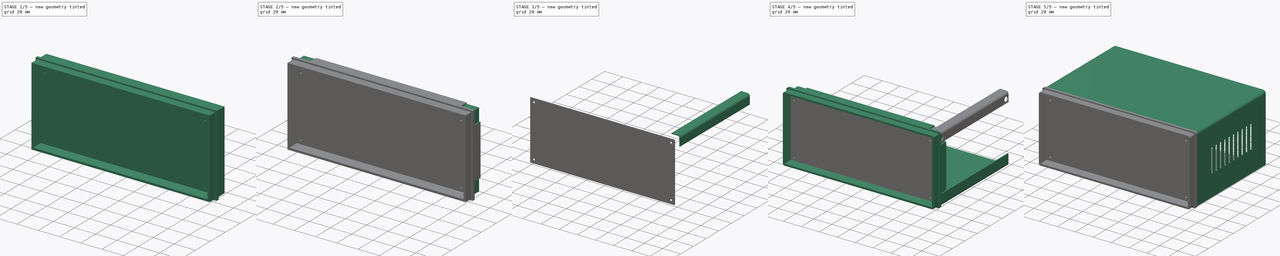
[diagram: build sequence overview — one tinted view per stage of 5, left to right]
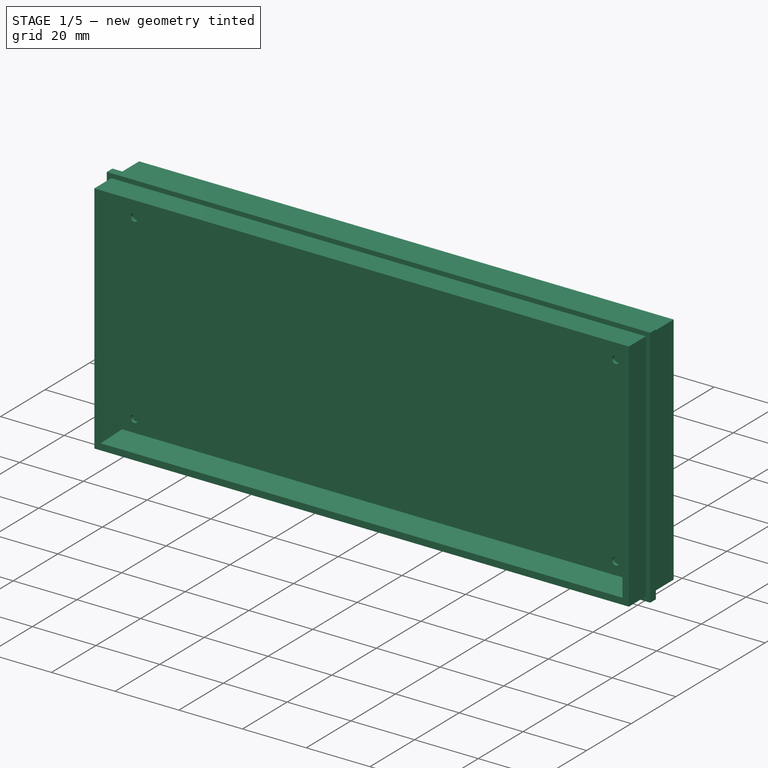
[diagram: stage 1 of 5 — iso view after this stage's code; geometry added in this stage tinted green]
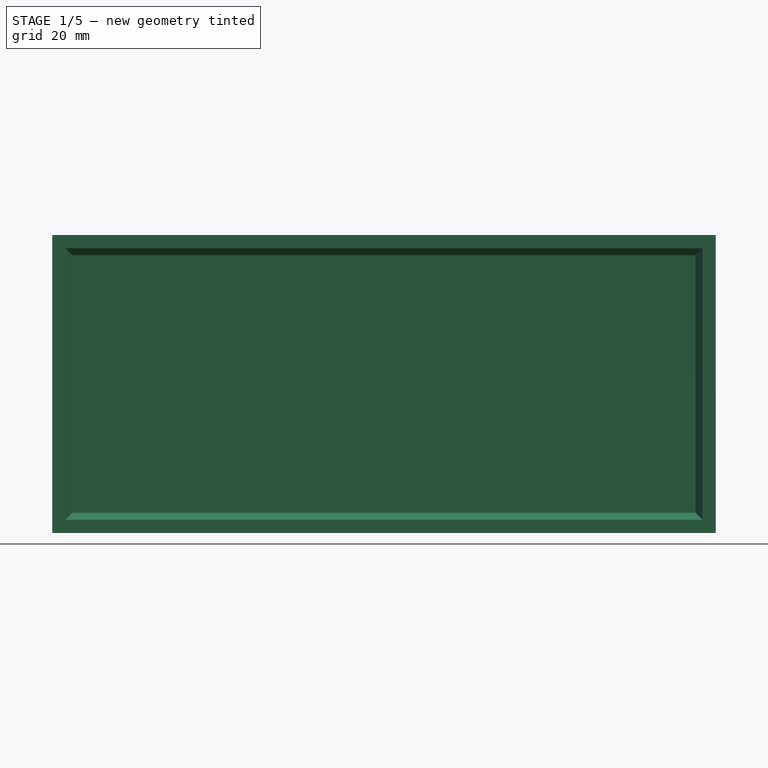
[diagram: stage 1 of 5 — front view after this stage's code; geometry added in this stage tinted green]
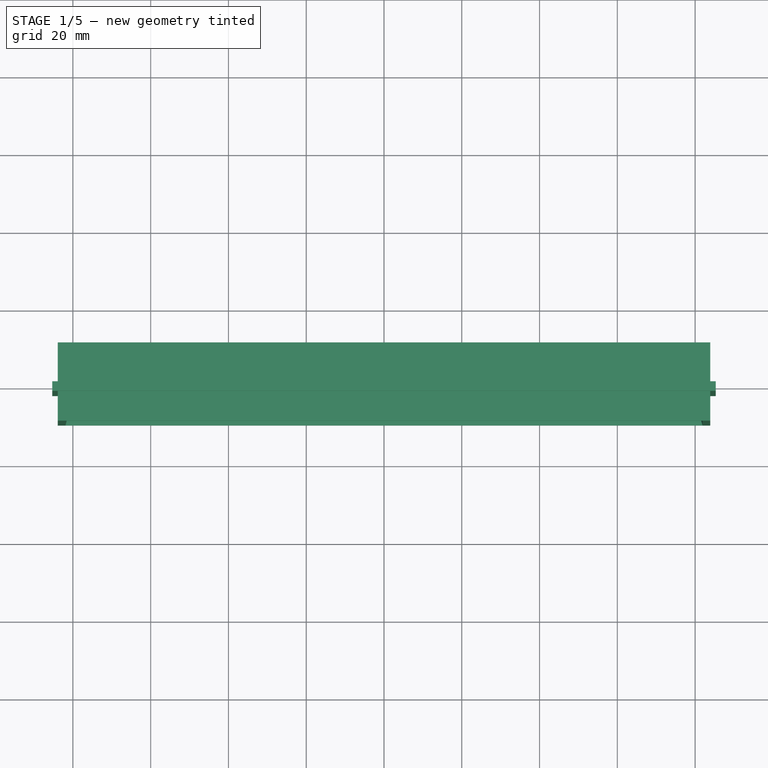
[diagram: stage 1 of 5 — top view after this stage's code; geometry added in this stage tinted green]
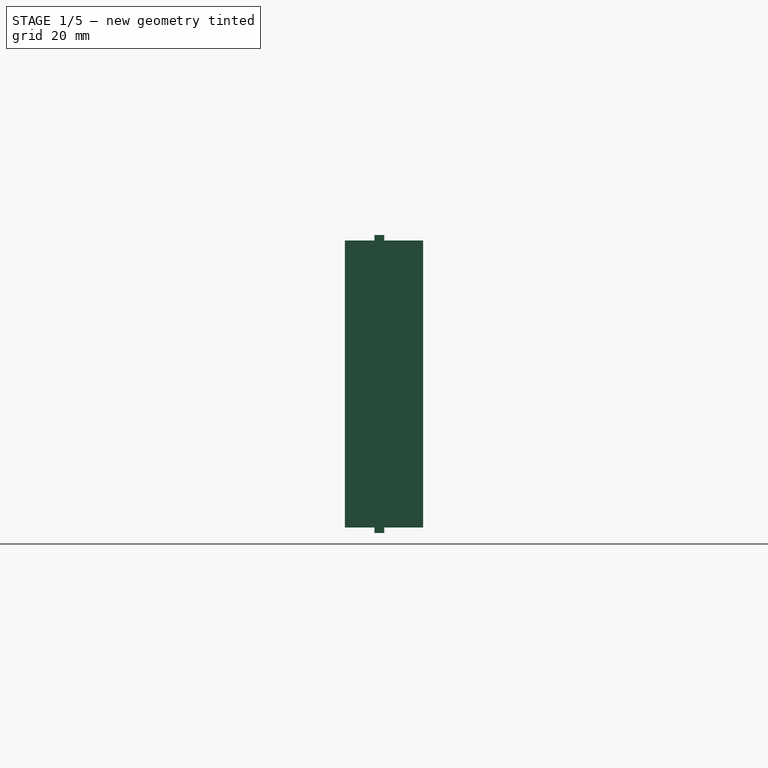
[diagram: stage 1 of 5 — right view after this stage's code; geometry added in this stage tinted green]
FCSTD DOCUMENT  (FreeCAD 0.18R4 (GitTag))
Label: Metal_Box_Aliexpress_170x130x80
License: All rights reserved
LicenseURL: http://en.wikipedia.org/wiki/All_rights_reserved
objects: Sketcher::SketchObject×14, PartDesign::Body×8, PartDesign::Pocket×6, PartDesign::Mirrored×5, PartDesign::Pad×4, PartDesign::ShapeBinder×3, PartDesign::FeatureBase×3, PartDesign::MultiTransform×2, PartDesign::Fillet×2, PartDesign::Hole×2, PartDesign::AdditivePipe×1, PartDesign::LinearPattern×1, App::Part×1
note: 64 computed .brp shape members not serialized (recipe doc carries the construction recipe); baked Part::Feature solids carry a one-line shape summary decoded from their .brp

FEATURE [Sketcher::SketchObject] Sketch  label="Sketch_innerPath"
  MapMode = 5
  Placement = pos=(0,0,0) rot=(1,0,0;1.5708rad)
  Support = -> [XZ_Plane]
  sketch-geometry (4):
    g0: LineSegment StartX=-81 StartY=34 StartZ=0 EndX=81 EndY=34 EndZ=0
    g1: LineSegment StartX=81 StartY=34 StartZ=0 EndX=81 EndY=-34 EndZ=0
    g2: LineSegment StartX=81 StartY=-34 StartZ=0 EndX=-81 EndY=-34 EndZ=0
    g3: LineSegment StartX=-81 StartY=-34 StartZ=0 EndX=-81 EndY=34 EndZ=0
  constraints (10):
    c: Coincident(g0,g1)
    c: Coincident(g1,g2)
    c: Coincident(g2,g3)
    c: Coincident(g3,g0)
    c: Horizontal(g2)
    c: Vertical(g3)
    c: Symmetric(g0,g0,g-2)
    c: Symmetric(g0,g1,g-1)
    c: DistanceX(g0,g0) = 162
    c: DistanceY(g1,g1) = 68
FEATURE [Sketcher::SketchObject] Sketch001  label="Sketch_Profile"
  ExternalGeometry = -> [Sketch]
  MapMode = 5
  Support = -> [XY_Plane]
  sketch-geometry (12):
    g0: LineSegment StartX=81 StartY=10.6 StartZ=0 EndX=83.9 EndY=10.6 EndZ=0
    g1: LineSegment StartX=83.9 StartY=10.6 StartZ=0 EndX=83.9 EndY=0.6 EndZ=0
    g2: LineSegment StartX=83.9 StartY=0.6 StartZ=0 EndX=85.3 EndY=0.6 EndZ=0
    g3: LineSegment StartX=85.3 StartY=0.6 StartZ=0 EndX=85.3 EndY=-1.9 EndZ=0
    g4: LineSegment StartX=85.3 StartY=-1.9 StartZ=0 EndX=83.9 EndY=-1.9 EndZ=0
    g5: LineSegment StartX=83.9 StartY=-1.9 StartZ=0 EndX=83.9 EndY=-9.5 EndZ=0
    g6: LineSegment StartX=83.9 StartY=-9.5 StartZ=0 EndX=81.9 EndY=-9.5 EndZ=0
    g7: LineSegment StartX=81.9 StartY=-9.5 StartZ=0 EndX=80.1 EndY=-2.5 EndZ=0
    g8: LineSegment StartX=80.1 StartY=-2.5 StartZ=0 EndX=74.3 EndY=-2.5 EndZ=0
    g9: LineSegment StartX=74.3 StartY=-2.5 StartZ=0 EndX=74.3 EndY=0 EndZ=0
    g10: LineSegment StartX=74.3 StartY=0 StartZ=0 EndX=81 EndY=0 EndZ=0
    g11: LineSegment StartX=81 StartY=0 StartZ=0 EndX=81 EndY=10.6 EndZ=0
  constraints (35):
    c: Coincident(g0,g1)
    c: Vertical(g1)
    c: Coincident(g1,g2)
    c: Horizontal(g2)
    c: Coincident(g2,g3)
    c: Vertical(g3)
    c: Coincident(g3,g4)
    c: Coincident(g4,g5)
    c: Horizontal(g0)
    c: Horizontal(g4)
    c: Vertical(g5)
    c: Coincident(g5,g6)
    c: Horizontal(g6)
    c: Coincident(g6,g7)
    c: Coincident(g7,g8)
    c: Horizontal(g8)
    c: Coincident(g8,g9)
    c: Vertical(g9)
    c: Coincident(g9,g10)
    c: Horizontal(g10)
    c: Coincident(g10,g11)
    c: Coincident(g11,g0)
    c: Vertical(g11)
    c: DistanceY(g5,g0) = 20.1
    c: DistanceY(g3,g2) = 2.5
    c: DistanceY(g1,g1) = 10
    c: DistanceX(g0,g0) = 2.9
    c: DistanceX(g6,g6) = 2
    c: Vertical(g1,g4)
    c: DistanceY(g9,g9) = 2.5
    c: DistanceY(g11,g11) = 10.6
    c: DistanceX(g4,g4) = 1.4
    c: DistanceX(g8,g8) = 5.8
    c: DistanceX(g8,g3) = 11
    c: Coincident(g10,g-3)
FEATURE [PartDesign::AdditivePipe] AdditivePipe  label="AdditivePipe_Frame"
  AuxilleryCurvelinear = true
  AuxillerySpineTangent = false
  Binormal = (0,0,0)
  Mode = 2
  Profile = -> Sketch001
  Spine = -> Sketch
  SpineTangent = false
  Transformation = 0
  Transition = 1
FEATURE [PartDesign::Body] Body006  label="Body_BarLeft"
  BaseFeature = -> Body005
  Group = -> [Clone001]
  Origin = -> Origin006
  Placement = pos=(0,111.2,0) rot=(0,0,1;3.14159rad)
  Tip = -> Clone001
FEATURE [Sketcher::SketchObject] Sketch012  label="Sketch_PanelFront"
  MapMode = 5
  Placement = pos=(0,0,0) rot=(1,0,0;1.5708rad)
  Support = -> [XZ_Plane007]
  sketch-geometry (4):
    g0: LineSegment StartX=-79.5 StartY=32.5 StartZ=0 EndX=79.5 EndY=32.5 EndZ=0
    g1: LineSegment StartX=79.5 StartY=32.5 StartZ=0 EndX=79.5 EndY=-32.5 EndZ=0
    g2: LineSegment StartX=79.5 StartY=-32.5 StartZ=0 EndX=-79.5 EndY=-32.5 EndZ=0
    g3: LineSegment StartX=-79.5 StartY=-32.5 StartZ=0 EndX=-79.5 EndY=32.5 EndZ=0
  constraints (10):
    c: Coincident(g0,g1)
    c: Coincident(g1,g2)
    c: Coincident(g2,g3)
    c: Coincident(g3,g0)
    c: Horizontal(g2)
    c: Vertical(g3)
    c: Symmetric(g0,g0,g-2)
    c: Symmetric(g0,g1,g-1)
    c: DistanceX(g0,g0) = 159
    c: DistanceY(g1,g1) = 65
FEATURE [PartDesign::Pad] Pad003  label="Pad_PanelFront"
  Length = 1
  Length2 = 100
  Placement = pos=(0,0,0) rot=(1,0,0;1.5708rad)
  Profile = -> Sketch012
  Type = 0
FEATURE [Sketcher::SketchObject] Sketch013  label="Sketch_PanelHoles"
  MapMode = 5
  Placement = pos=(0,-1,4e-16) rot=(1,0,0;1.5708rad)
  Support = -> [Pad003]
  sketch-geometry (4):
    g0: Circle CenterX=75.55 CenterY=28.575 CenterZ=0 NormalX=0 NormalY=0 NormalZ=1 AngleXU=0 Radius=1.15
    g1: Circle CenterX=-75.55 CenterY=28.575 CenterZ=0 NormalX=0 NormalY=0 NormalZ=1 AngleXU=0 Radius=1.15
    g2: Circle CenterX=-75.55 CenterY=-28.575 CenterZ=0 NormalX=0 NormalY=0 NormalZ=1 AngleXU=0 Radius=1.15
    g3: Circle CenterX=75.55 CenterY=-28.575 CenterZ=0 NormalX=0 NormalY=0 NormalZ=1 AngleXU=0 Radius=1.15
  constraints (10):
    c: Symmetric(g0,g1,g-2)
    c: Vertical(g1,g2)
    c: Equal(g1,g0)
    c: Equal(g0,g2)
    c: Equal(g2,g3)
    c: Diameter(g1) = 2.3
    c: DistanceY(g3,g0) = 57.15
    c: Horizontal(g2,g3)
    c: Symmetric(g0,g3,g-1)
    c: DistanceX(g1,g0) = 151.1
FEATURE [PartDesign::Pocket] Pocket005  label="Pocket_PanelHoles"
  BaseFeature = -> Pad003
  Length = 5
  Length2 = 100
  Midplane = true
  Placement = pos=(0,0,0) rot=(1,0,0;1.5708rad)
  Profile = -> Sketch013
  Type = 1
FEATURE [PartDesign::Body] Body007  label="Body_PanelFront"
  Group = -> [Sketch012,Pad003,Sketch013,Pocket005]
  Origin = -> Origin007
  Placement = pos=(0,-2.5,0) rot=(0,0,1;0rad)
  Tip = -> Pocket005
FEATURE [PartDesign::FeatureBase] Clone002
  BaseFeature = -> Body007
  Placement = pos=(0,-2.5,0) rot=(0,0,1;0rad)
FEATURE [PartDesign::Body] Body008  label="Body_PanelRear"
  BaseFeature = -> Body007
  Group = -> [Clone002]
  Origin = -> Origin008
  Placement = pos=(0,117.2,0) rot=(0,0,1;0rad)
  Tip = -> Clone002
FEATURE [App::Part] Part  label="Metal_Box_Aliexpress_170x130x80"
  Group = -> [Body,Body001,Body002,Body003,Body005,Body006,Body007,Body008]
  Origin = -> Origin009
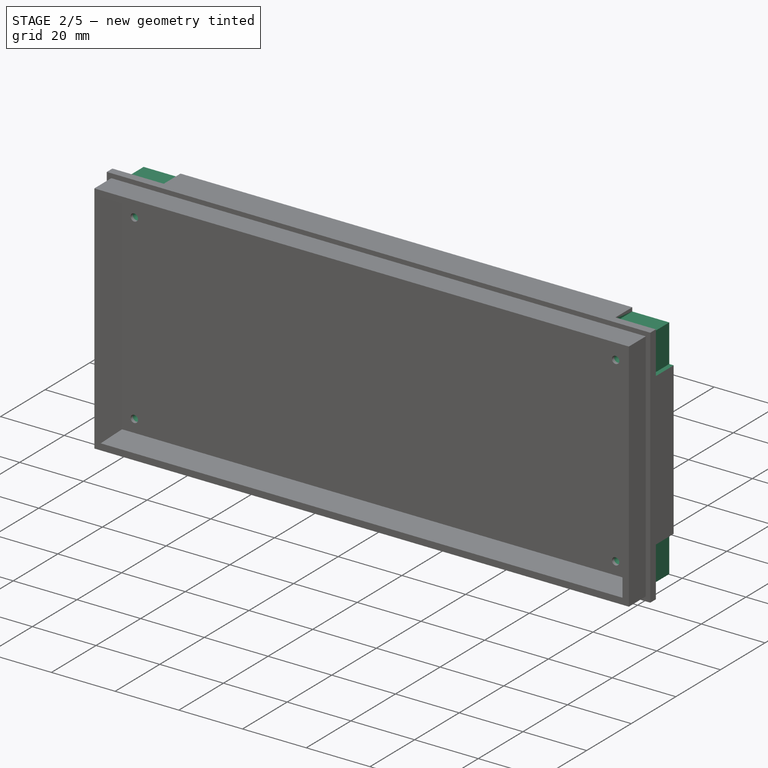
[diagram: stage 2 of 5 — iso view after this stage's code; geometry added in this stage tinted green]
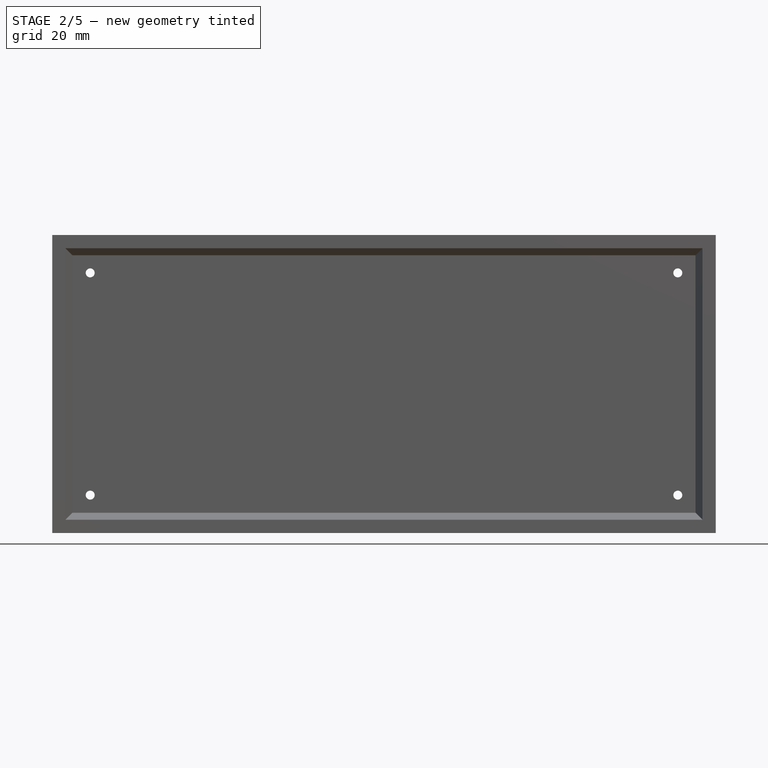
[diagram: stage 2 of 5 — front view after this stage's code; geometry added in this stage tinted green]
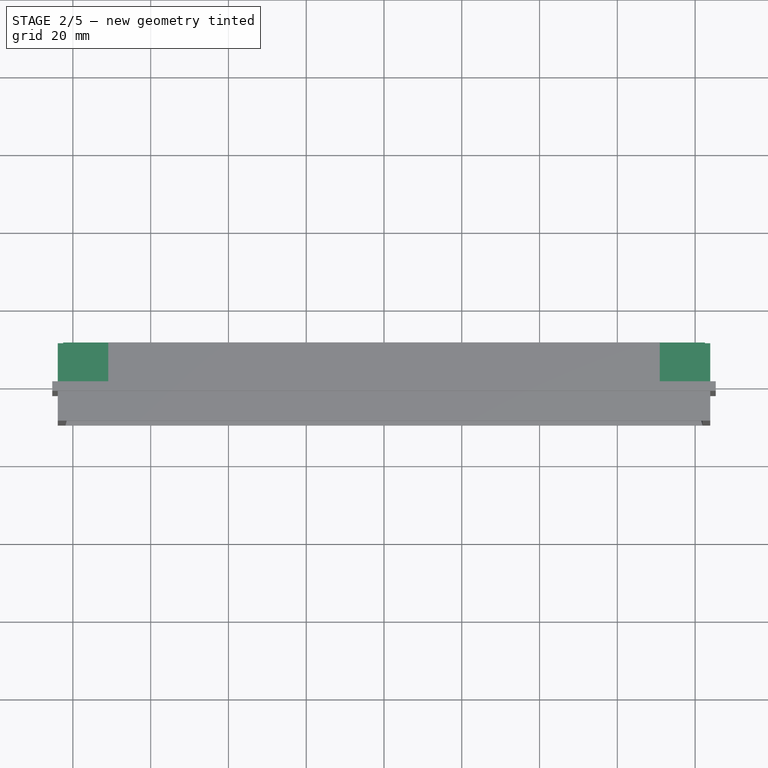
[diagram: stage 2 of 5 — top view after this stage's code; geometry added in this stage tinted green]
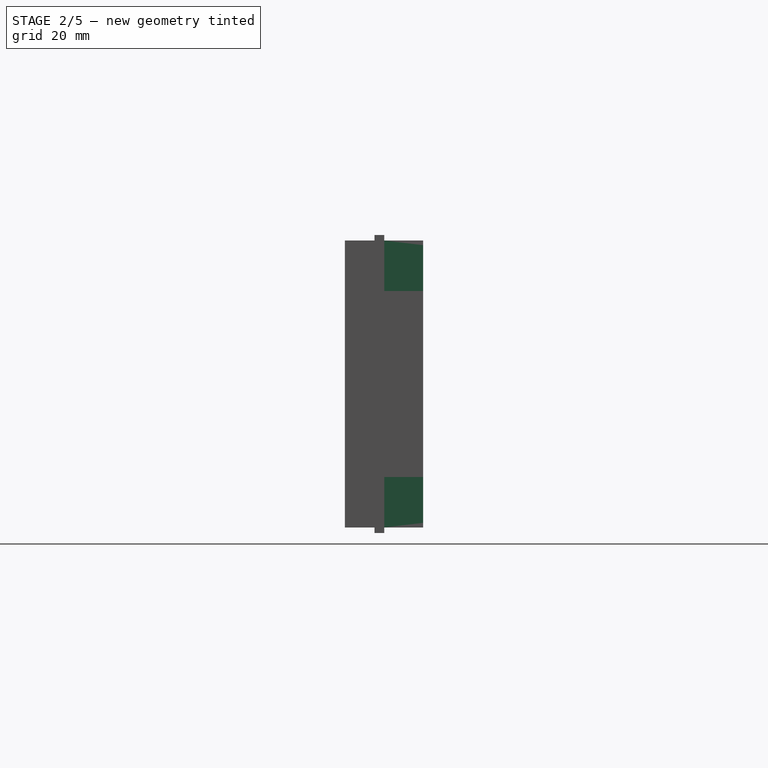
[diagram: stage 2 of 5 — right view after this stage's code; geometry added in this stage tinted green]
FEATURE [Sketcher::SketchObject] Sketch002  label="Sketch_PocketTopBot"
  ExternalGeometry = -> [AdditivePipe]
  MapMode = 5
  Placement = pos=(0,1.22e-14,36.9) rot=(0,0,1;0rad)
  Support = -> [AdditivePipe]
  sketch-geometry (4):
    g0: LineSegment StartX=-83.9 StartY=10.6 StartZ=0 EndX=-70.9 EndY=10.6 EndZ=0
    g1: LineSegment StartX=-70.9 StartY=10.6 StartZ=0 EndX=-70.9 EndY=0.6 EndZ=0
    g2: LineSegment StartX=-70.9 StartY=0.6 StartZ=0 EndX=-83.9 EndY=0.6 EndZ=0
    g3: LineSegment StartX=-83.9 StartY=0.6 StartZ=0 EndX=-83.9 EndY=10.6 EndZ=0
  constraints (11):
    c: Coincident(g0,g1)
    c: Coincident(g1,g2)
    c: Coincident(g2,g3)
    c: Coincident(g3,g0)
    c: Horizontal(g0)
    c: Horizontal(g2)
    c: Vertical(g1)
    c: Vertical(g3)
    c: DistanceX(g0,g0) = 13
    c: PointOnObject(g2,g-5)
    c: Coincident(g0,g-3)
FEATURE [PartDesign::Pocket] Pocket  label="Pocket_TopBot"
  BaseFeature = -> AdditivePipe
  Length = 1.2
  Length2 = 100
  Profile = -> Sketch002
  Type = 0
FEATURE [PartDesign::Mirrored] Mirrored
  MirrorPlane = -> Sketch002 [V_Axis]
FEATURE [PartDesign::Mirrored] Mirrored001
  MirrorPlane = -> XY_Plane
FEATURE [PartDesign::MultiTransform] MultiTransform  label="MultiTransform_PocketsTopBot"
  BaseFeature = -> Pocket
  Originals = -> [Pocket]
  Transformations = -> [Mirrored,Mirrored001]
FEATURE [Sketcher::SketchObject] Sketch003  label="Sketch_PocketLeftRi"
  ExternalGeometry = -> [MultiTransform]
  MapMode = 5
  Placement = pos=(-83.9,5.62e-14,0) rot=(-0.57735,0.57735,0.57735;4.18879rad)
  Support = -> [MultiTransform]
  sketch-geometry (4):
    g0: LineSegment StartX=-10.6 StartY=36.9 StartZ=0 EndX=-0.6 EndY=36.9 EndZ=0
    g1: LineSegment StartX=-0.6 StartY=36.9 StartZ=0 EndX=-0.6 EndY=23.9 EndZ=0
    g2: LineSegment StartX=-0.6 StartY=23.9 StartZ=0 EndX=-10.6 EndY=23.9 EndZ=0
    g3: LineSegment StartX=-10.6 StartY=23.9 StartZ=0 EndX=-10.6 EndY=36.9 EndZ=0
  constraints (10):
    c: Coincident(g0,g1)
    c: Coincident(g1,g2)
    c: Coincident(g2,g3)
    c: Coincident(g3,g0)
    c: Horizontal(g2)
    c: Vertical(g1)
    c: Vertical(g3)
    c: Coincident(g0,g-3)
    c: DistanceY(g3,g3) = 13
    c: Coincident(g0,g-3)
FEATURE [PartDesign::Pocket] Pocket001  label="Pocket_LeftRi"
  BaseFeature = -> MultiTransform
  Length = 1.4
  Length2 = 100
  Profile = -> Sketch003
  Type = 0
FEATURE [PartDesign::Mirrored] Mirrored002
  MirrorPlane = -> XY_Plane
FEATURE [PartDesign::Mirrored] Mirrored003
  MirrorPlane = -> YZ_Plane
FEATURE [PartDesign::MultiTransform] MultiTransform001  label="MultiTransform_Pockets_LeftRi"
  BaseFeature = -> Pocket001
  Originals = -> [Pocket001]
  Transformations = -> [Mirrored002,Mirrored003]
FEATURE [Sketcher::SketchObject] Sketch004  label="Sketch_HolesFront"
  ExternalGeometry = -> [MultiTransform001]
  MapMode = 5
  Placement = pos=(0,0,0) rot=(1,0,0;1.5708rad)
  Support = -> [XZ_Plane]
  sketch-geometry (4):
    g0: Circle CenterX=-75.55 CenterY=28.575 CenterZ=0 NormalX=0 NormalY=0 NormalZ=1 AngleXU=0 Radius=1.15
    g1: Circle CenterX=75.55 CenterY=28.575 CenterZ=0 NormalX=0 NormalY=0 NormalZ=1 AngleXU=0 Radius=1.15
    g2: Circle CenterX=75.55 CenterY=-28.575 CenterZ=0 NormalX=0 NormalY=0 NormalZ=1 AngleXU=0 Radius=1.15
    g3: Circle CenterX=-75.55 CenterY=-28.575 CenterZ=0 NormalX=0 NormalY=0 NormalZ=1 AngleXU=0 Radius=1.15
  constraints (10):
    c: Diameter(g0) = 2.3
    c: Equal(g1,g0)
    c: Equal(g0,g2)
    c: Equal(g2,g3)
    c: Horizontal(g3,g2)
    c: Vertical(g1,g2)
    c: Symmetric(g0,g1,g-2)
    c: Symmetric(g0,g3,g-1)
    c: DistanceX(g0,g1) = 151.1
    c: DistanceY(g2,g1) = 57.15
FEATURE [PartDesign::Pocket] Pocket002  label="Pocket_HolesFront"
  BaseFeature = -> MultiTransform001
  Length = 5
  Length2 = 100
  Midplane = true
  Profile = -> Sketch004
  Type = 1
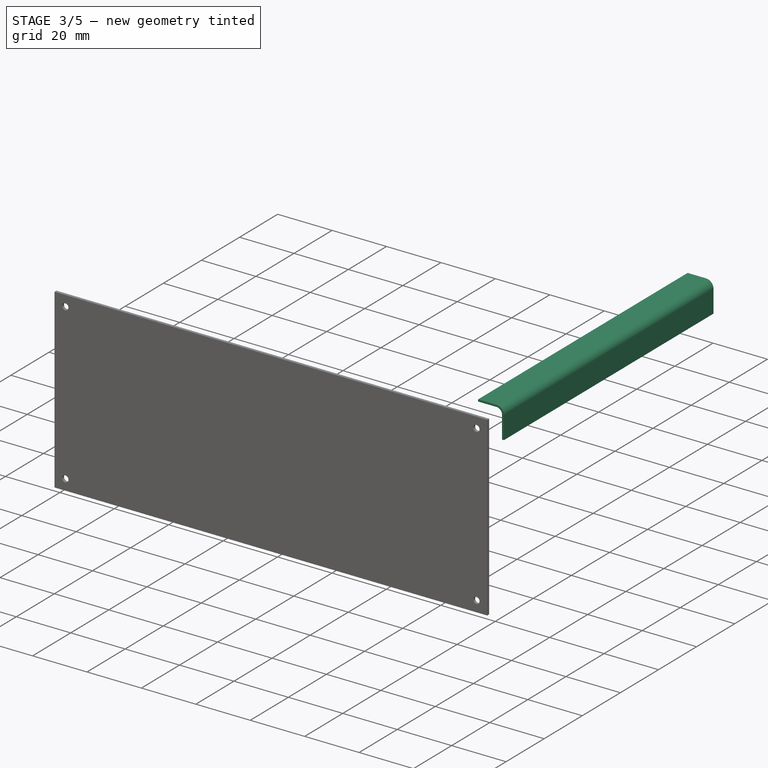
[diagram: stage 3 of 5 — iso view after this stage's code; geometry added in this stage tinted green]
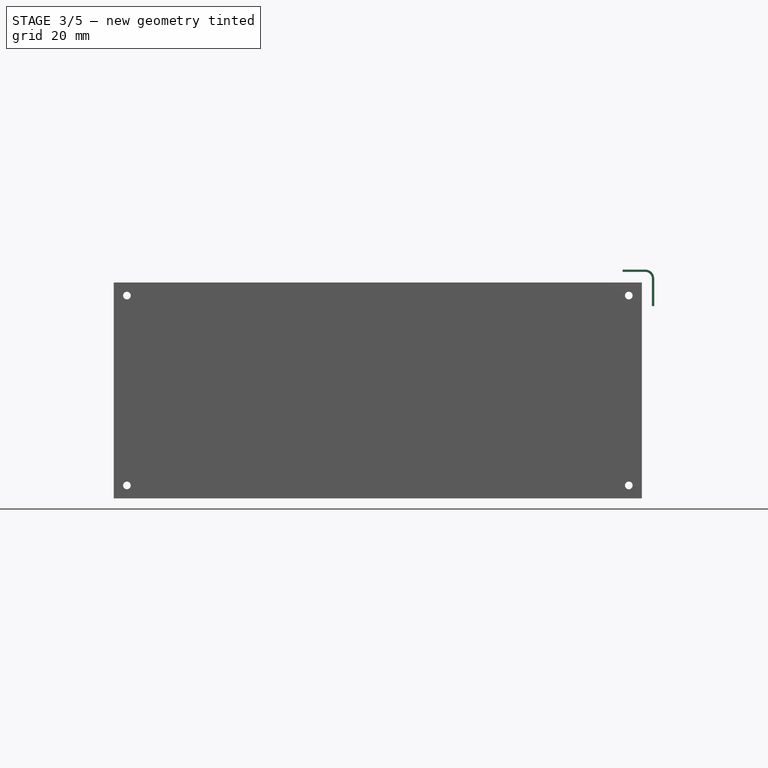
[diagram: stage 3 of 5 — front view after this stage's code; geometry added in this stage tinted green]
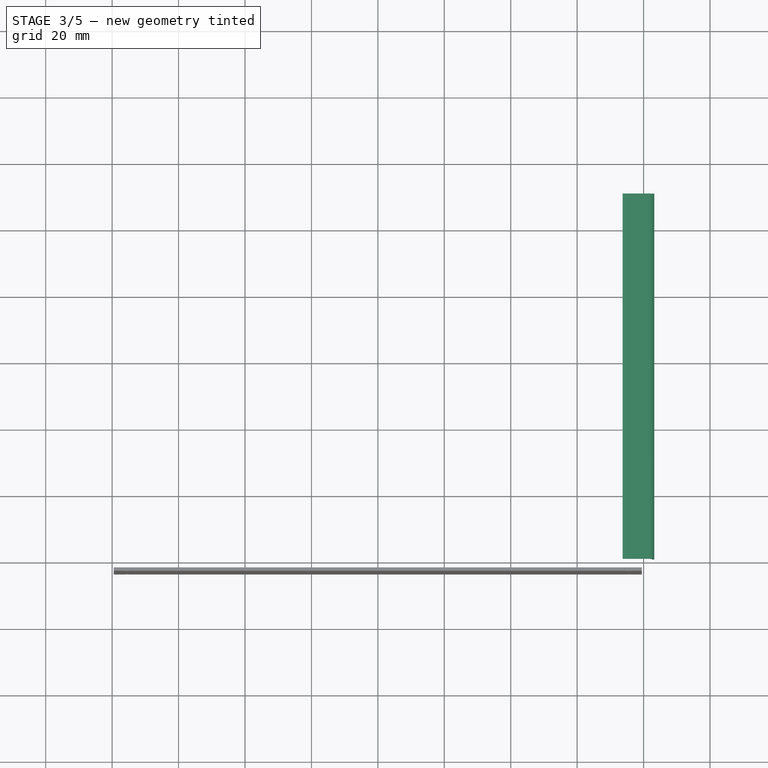
[diagram: stage 3 of 5 — top view after this stage's code; geometry added in this stage tinted green]
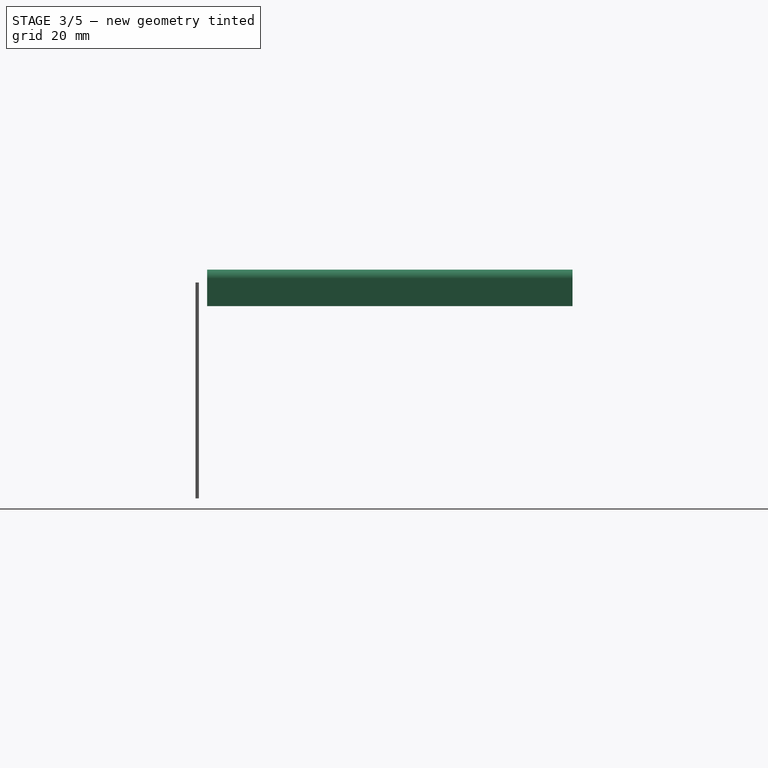
[diagram: stage 3 of 5 — right view after this stage's code; geometry added in this stage tinted green]
FEATURE [PartDesign::Fillet] Fillet
  Base = -> Pocket002 [Edge32,Edge136,Edge91,Edge176,Edge65,Edge175,Edge23,Edge138]
  BaseFeature = -> Pocket002
  Radius = 2
FEATURE [PartDesign::Fillet] Fillet001
  Base = -> Fillet [Edge232,Edge234,Edge238,Edge235]
  BaseFeature = -> Fillet
  Radius = 2
FEATURE [Sketcher::SketchObject] Sketch005  label="Sketch_HolesSide"
  MapMode = 5
  Placement = pos=(0,0,0) rot=(0.57735,0.57735,0.57735;2.0944rad)
  Support = -> [YZ_Plane]
  sketch-geometry (2):
    g0: Circle CenterX=4.1 CenterY=29.55 CenterZ=0 NormalX=0 NormalY=0 NormalZ=1 AngleXU=0 Radius=1.75
    g1: Circle CenterX=4.1 CenterY=-29.55 CenterZ=0 NormalX=0 NormalY=0 NormalZ=1 AngleXU=0 Radius=1.75
  constraints (5):
    c: Diameter(g0) = 3.5
    c: Equal(g0,g1)
    c: Symmetric(g0,g1,g-1)
    c: DistanceX(g-1,g1) = 4.1
    c: DistanceY(g1,g0) = 59.1
FEATURE [PartDesign::Pocket] Pocket003  label="Pocket_HolesSide"
  BaseFeature = -> Fillet001
  Length = 5
  Length2 = 100
  Midplane = true
  Profile = -> Sketch005
  Type = 1
FEATURE [PartDesign::Body] Body003  label="Body_FrameRear"
  BaseFeature = -> Body
  Group = -> [Clone]
  Origin = -> Origin003
  Placement = pos=(0,111.2,0) rot=(1,0,0;3.14159rad)
  Tip = -> Clone
FEATURE [PartDesign::ShapeBinder] ShapeBinder001  label="ShapeBinder_FrameFillet"
  Support = -> [Pocket003]
  TraceSupport = false
FEATURE [Sketcher::SketchObject] Sketch010
  ExternalGeometry = -> [ShapeBinder001]
  MapMode = 5
  Placement = pos=(0,0,0) rot=(1,0,0;1.5708rad)
  Support = -> [XZ_Plane005]
  sketch-geometry (8):
    g0: ArcOfCircle CenterX=80.5 CenterY=33.7 CenterZ=0 NormalX=0 NormalY=0 NormalZ=1 AngleXU=0 Radius=2 StartAngle=-2.7e-15 EndAngle=1.5708
    g1: LineSegment StartX=82.5 StartY=33.7 StartZ=0 EndX=82.5 EndY=25.4 EndZ=0
    g2: LineSegment StartX=82.5 StartY=25.4 StartZ=0 EndX=83.2 EndY=25.4 EndZ=0
    g3: LineSegment StartX=83.2 StartY=25.4 StartZ=0 EndX=83.2 EndY=33.7 EndZ=0
    g4: ArcOfCircle CenterX=80.5 CenterY=33.7 CenterZ=0 NormalX=0 NormalY=0 NormalZ=1 AngleXU=0 Radius=2.7 StartAngle=4e-16 EndAngle=1.5708
    g5: LineSegment StartX=80.5 StartY=36.4 StartZ=0 EndX=73.7 EndY=36.4 EndZ=0
    g6: LineSegment StartX=73.7 StartY=36.4 StartZ=0 EndX=73.7 EndY=35.7 EndZ=0
    g7: LineSegment StartX=73.7 StartY=35.7 StartZ=0 EndX=80.5 EndY=35.7 EndZ=0
  constraints (22):
    c: Coincident(g0,g-3)
    c: Coincident(g0,g-3)
    c: Coincident(g0,g-3)
    c: Tangent(g0,g1) = 1.5708
    c: Coincident(g1,g2)
    c: Coincident(g2,g3)
    c: Vertical(g3)
    c: Tangent(g3,g4) = -1.5708
    c: Tangent(g4,g5) = -1.5708
    c: Coincident(g5,g6)
    c: Vertical(g6)
    c: Coincident(g6,g7)
    c: Coincident(g7,g0)
    c: Horizontal(g5)
    c: Horizontal(g7)
    c: Horizontal(g2)
    c: Vertical(g1)
    c: Coincident(g0,g4)
    c: Equal(g2,g6)
    c: DistanceY(g6,g6) = 0.7
    c: DistanceY(g2,g4) = 11
    c: DistanceX(g5,g3) = 9.5
FEATURE [PartDesign::Pad] Pad002
  Length = 110
  Length2 = 100
  Placement = pos=(0,0,0) rot=(1,0,0;1.5708rad)
  Profile = -> Sketch010
  Reversed = true
  Type = 0
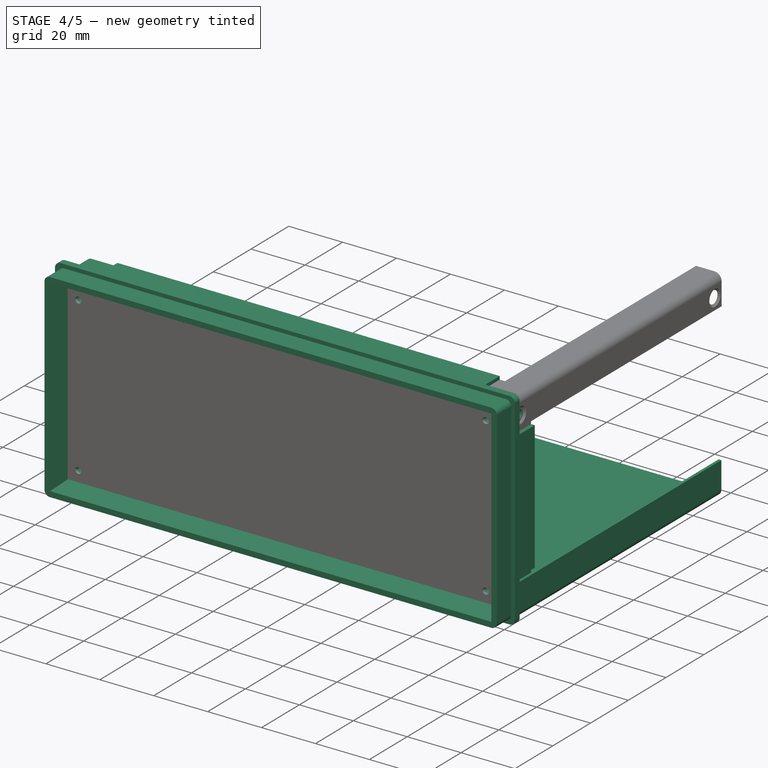
[diagram: stage 4 of 5 — iso view after this stage's code; geometry added in this stage tinted green]
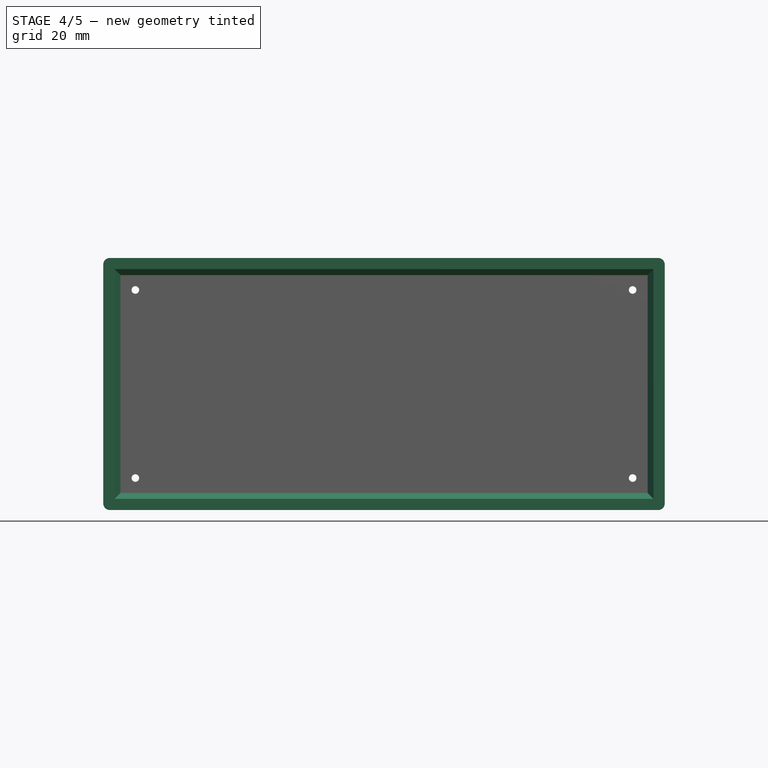
[diagram: stage 4 of 5 — front view after this stage's code; geometry added in this stage tinted green]
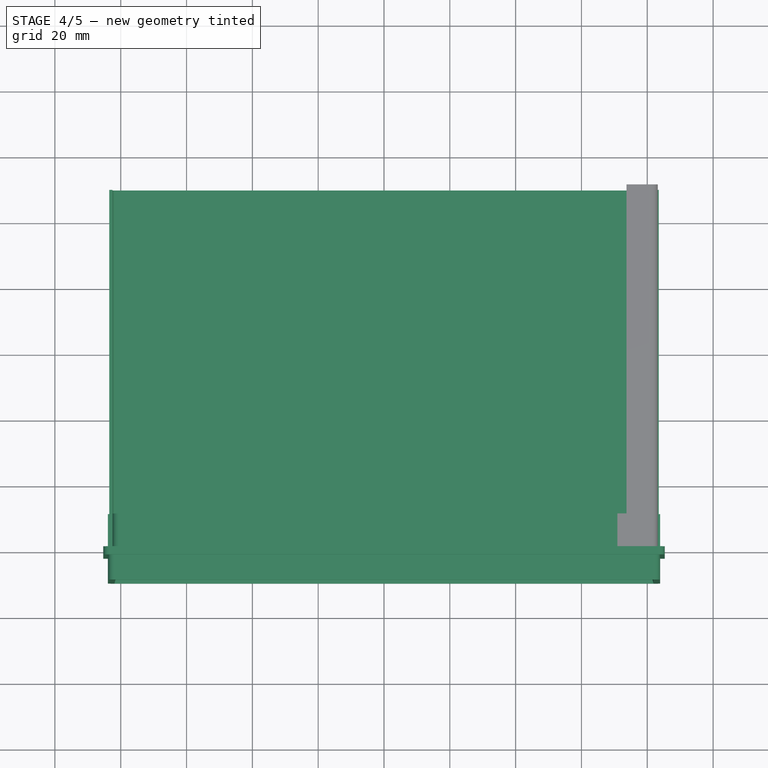
[diagram: stage 4 of 5 — top view after this stage's code; geometry added in this stage tinted green]
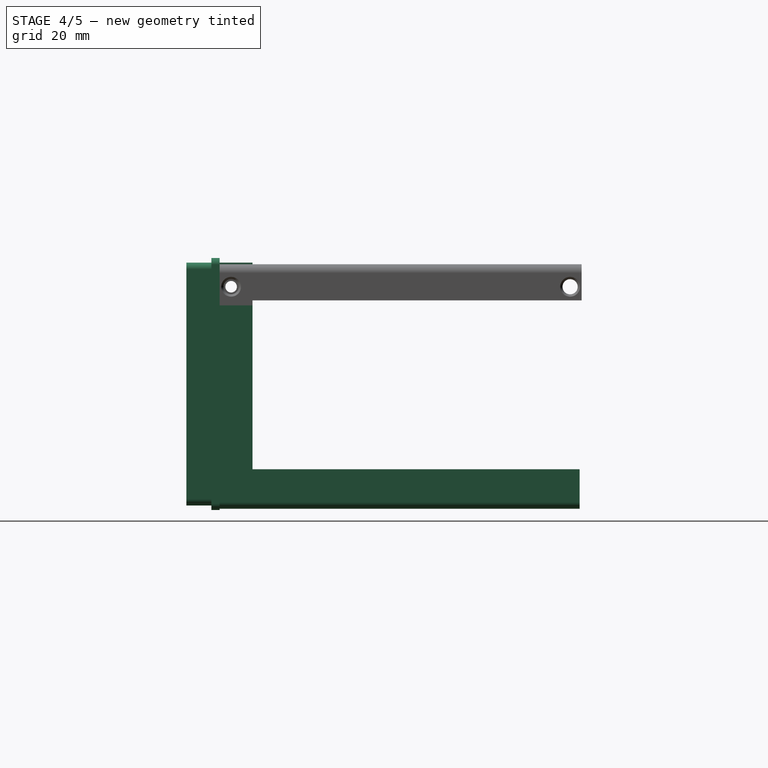
[diagram: stage 4 of 5 — right view after this stage's code; geometry added in this stage tinted green]
FEATURE [PartDesign::Body] Body001  label="Body_Cover"
  Group = -> [Sketch006,Pad,Sketch007,Pocket004,LinearPattern]
  Origin = -> Origin001
  Placement = pos=(0,0.6,0) rot=(0,0,1;0rad)
  Tip = -> LinearPattern
FEATURE [Sketcher::SketchObject] Sketch008  label="Sketch_BaseProfile"
  MapMode = 5
  Placement = pos=(0,0,0) rot=(1,0,0;1.5708rad)
  Support = -> [XZ_Plane002]
  sketch-geometry (12):
    g0: LineSegment StartX=-83.5 StartY=-25.9 StartZ=0 EndX=-83.5 EndY=-35.9 EndZ=0
    g1: ArcOfCircle CenterX=-81.5 CenterY=-35.9 CenterZ=0 NormalX=0 NormalY=0 NormalZ=1 AngleXU=0 Radius=2 StartAngle=3.14159 EndAngle=4.71239
    g2: LineSegment StartX=-81.5 StartY=-37.9 StartZ=0 EndX=81.5 EndY=-37.9 EndZ=0
    g3: ArcOfCircle CenterX=81.5 CenterY=-35.9 CenterZ=0 NormalX=0 NormalY=0 NormalZ=1 AngleXU=0 Radius=2 StartAngle=4.71239 EndAngle=6.28319
    g4: LineSegment StartX=82.5 StartY=-25.9 StartZ=0 EndX=82.5 EndY=-35.9 EndZ=0
    g5: ArcOfCircle CenterX=81.5 CenterY=-35.9 CenterZ=0 NormalX=0 NormalY=0 NormalZ=1 AngleXU=0 Radius=1 StartAngle=4.71239 EndAngle=6.28319
    g6: LineSegment StartX=81.5 StartY=-36.9 StartZ=0 EndX=-81.5 EndY=-36.9 EndZ=0
    g7: ArcOfCircle CenterX=-81.5 CenterY=-35.9 CenterZ=0 NormalX=0 NormalY=0 NormalZ=1 AngleXU=0 Radius=1 StartAngle=3.14159 EndAngle=4.71239
    g8: LineSegment StartX=-82.5 StartY=-35.9 StartZ=0 EndX=-82.5 EndY=-25.9 EndZ=0
    g9: LineSegment StartX=-82.5 StartY=-25.9 StartZ=0 EndX=-83.5 EndY=-25.9 EndZ=0
    g10: LineSegment StartX=82.5 StartY=-25.9 StartZ=0 EndX=83.5 EndY=-25.9 EndZ=0
    g11: LineSegment StartX=83.5 StartY=-25.9 StartZ=0 EndX=83.5 EndY=-35.9 EndZ=0
  constraints (30):
    c: Vertical(g0)
    c: Tangent(g0,g1) = -1.5708
    c: Tangent(g1,g2) = -1.5708
    c: Tangent(g2,g3) = -1.5708
    c: Vertical(g4)
    c: Tangent(g4,g5) = 1.5708
    c: Tangent(g5,g6) = 1.5708
    c: Tangent(g6,g7) = 1.5708
    c: Tangent(g7,g8) = 1.5708
    c: Coincident(g8,g9)
    c: Coincident(g9,g0)
    c: Horizontal(g9)
    c: Horizontal(g2)
    c: Horizontal(g6)
    c: Vertical(g8)
    c: Coincident(g1,g7)
    c: Coincident(g5,g3)
    c: Radius(g1) = 2
    c: Equal(g3,g1)
    c: Coincident(g4,g10)
    c: Coincident(g10,g11)
    c: Coincident(g11,g3)
    c: Vertical(g11)
    c: Horizontal(g10)
    c: Equal(g10,g9)
    c: DistanceX(g0,g8) = 1
    c: DistanceY(g0,g0) = 10
    c: Symmetric(g8,g4,g-2)
    c: DistanceX(g7,g4) = 165
    c: DistanceY(g5,g-1) = 36.9
FEATURE [PartDesign::Pad] Pad001  label="Pad_BaseDepth"
  Length = 110
  Length2 = 100
  Placement = pos=(0,0,0) rot=(1,0,0;1.5708rad)
  Profile = -> Sketch008
  Reversed = true
  Type = 0
FEATURE [PartDesign::ShapeBinder] ShapeBinder  label="ShapeBinder_FrameHoleSide"
  Support = -> [Pocket003]
  TraceSupport = false
FEATURE [Sketcher::SketchObject] Sketch009  label="Sketch_HoleSide"
  ExternalGeometry = -> [ShapeBinder,Pad001]
  MapMode = 5
  Placement = pos=(-83.5,0,0) rot=(0.707107,0,-0.707107;3.14159rad)
  Support = -> [Pad001]
  sketch-geometry (2):
    g0: Circle CenterX=29.55 CenterY=-3.5 CenterZ=0 NormalX=0 NormalY=0 NormalZ=1 AngleXU=0 Radius=2.5
    g1: Circle CenterX=29.55 CenterY=-106.5 CenterZ=0 NormalX=0 NormalY=0 NormalZ=1 AngleXU=0 Radius=2.5
  constraints (6):
    c: Vertical(g0,g1)
    c: Equal(g1,g0)
    c: DistanceY(g1,g0) = 103
    c: Vertical(g0,g-3)
    c: DistanceY(g0,g-1) = 3.5
    c: Diameter(g0) = 5
FEATURE [PartDesign::Hole] Hole
  BaseFeature = -> Pad001
  Depth = 25
  DepthType = 0
  Diameter = 3.3
  DrillPoint = 1
  DrillPointAngle = 118
  HoleCutCountersinkAngle = 90
  HoleCutDepth = 0
  HoleCutDiameter = 6
  HoleCutType = 2
  ModelActualThread = false
  Placement = pos=(0,0,0) rot=(1,0,0;1.5708rad)
  Profile = -> Sketch009
  Tapered = false
  TaperedAngle = 90
  ThreadAngle = 0
  ThreadClass = 0
  ThreadCutOffInner = 0
  ThreadCutOffOuter = 0
  ThreadDirection = 0
  ThreadFit = 0
  ThreadPitch = 0
  ThreadSize = 3
  ThreadType = 1
  Threaded = false
FEATURE [PartDesign::Body] Body002  label="Body_Base"
  Group = -> [Sketch008,Pad001,ShapeBinder,Sketch009,Hole,Mirrored004]
  Origin = -> Origin002
  Placement = pos=(0,0.6,0) rot=(0,0,1;0rad)
  Tip = -> Mirrored004
FEATURE [PartDesign::FeatureBase] Clone  label="Clone_BodyFrameFront"
  BaseFeature = -> Body
FEATURE [PartDesign::ShapeBinder] ShapeBinder002  label="ShapeBinder_FrameHoleSide001"
  Support = -> [Pocket003]
  TraceSupport = false
FEATURE [Sketcher::SketchObject] Sketch011  label="Sketch_BarHole"
  ExternalGeometry = -> [ShapeBinder002]
  MapMode = 5
  Placement = pos=(83.2,0,0) rot=(0.707107,0,0.707107;3.14159rad)
  Support = -> [Pad002]
  sketch-geometry (2):
    g0: Circle CenterX=29.55 CenterY=-3.5 CenterZ=0 NormalX=0 NormalY=0 NormalZ=1 AngleXU=0 Radius=2.5
    g1: Circle CenterX=29.55 CenterY=-106.5 CenterZ=0 NormalX=0 NormalY=0 NormalZ=1 AngleXU=0 Radius=2.5
  constraints (6):
    c: Diameter(g0) = 5
    c: Vertical(g0,g-3)
    c: Vertical(g0,g1)
    c: Equal(g0,g1)
    c: DistanceY(g0,g-1) = 3.5
    c: DistanceY(g1,g0) = 103
FEATURE [PartDesign::Hole] Hole001
  BaseFeature = -> Pad002
  Depth = 25
  DepthType = 0
  Diameter = 3.3
  DrillPoint = 1
  DrillPointAngle = 118
  HoleCutCountersinkAngle = 90
  HoleCutDepth = 0
  HoleCutDiameter = 6
  HoleCutType = 2
  ModelActualThread = false
  Placement = pos=(0,0,0) rot=(1,0,0;1.5708rad)
  Profile = -> Sketch011
  Tapered = false
  TaperedAngle = 90
  ThreadAngle = 0
  ThreadClass = 0
  ThreadCutOffInner = 0
  ThreadCutOffOuter = 0
  ThreadDirection = 0
  ThreadFit = 0
  ThreadPitch = 0
  ThreadSize = 3
  ThreadType = 1
  Threaded = false
FEATURE [PartDesign::Body] Body005  label="Body_BarRight"
  Group = -> [ShapeBinder001,Sketch010,Pad002,ShapeBinder002,Sketch011,Hole001]
  Origin = -> Origin005
  Placement = pos=(0,0.6,0) rot=(0,0,1;0rad)
  Tip = -> Hole001
FEATURE [PartDesign::FeatureBase] Clone001
  BaseFeature = -> Body005
  Placement = pos=(0,0.6,0) rot=(0,0,1;0rad)
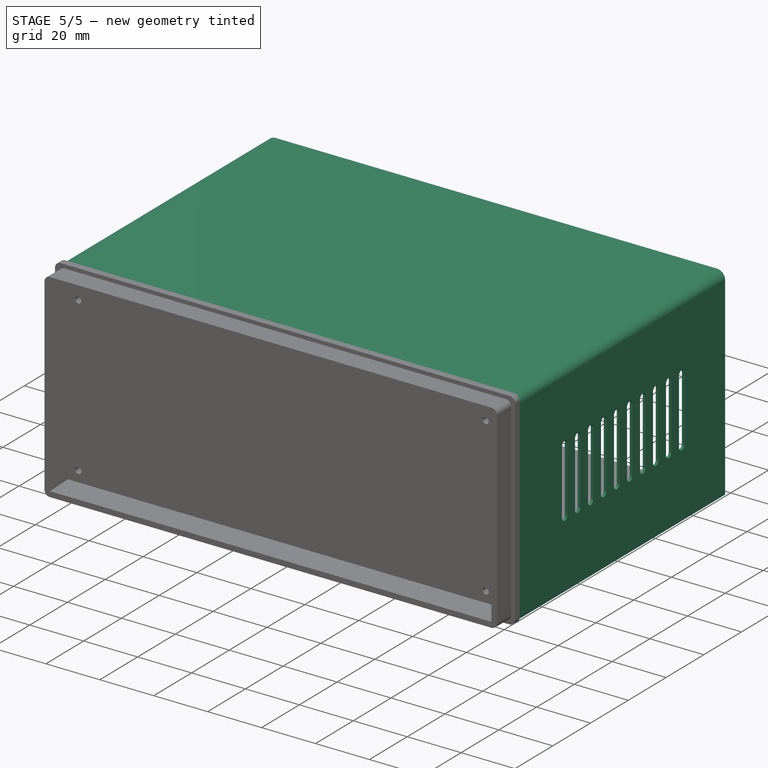
[diagram: stage 5 of 5 — iso view after this stage's code; geometry added in this stage tinted green]
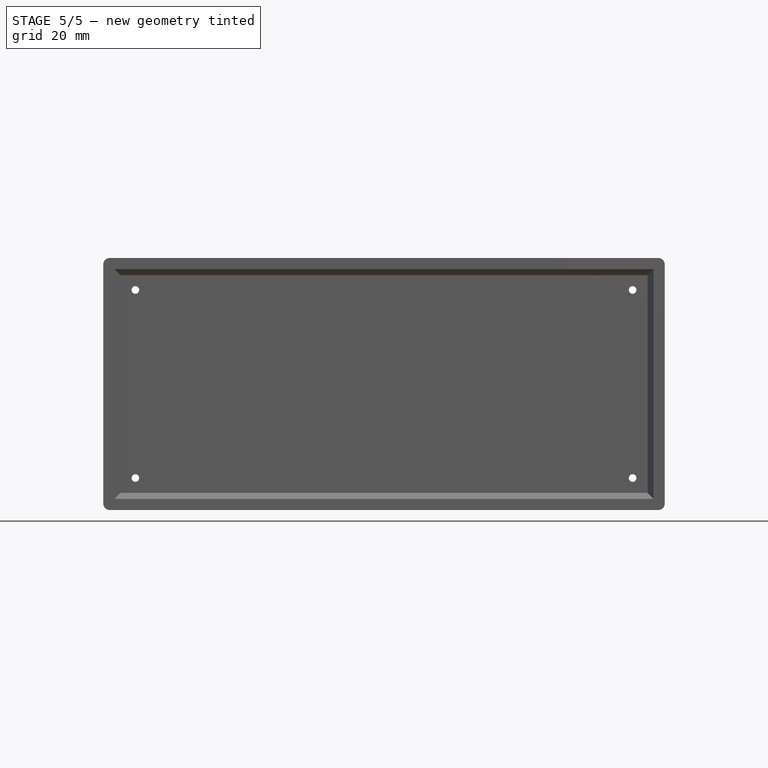
[diagram: stage 5 of 5 — front view after this stage's code; geometry added in this stage tinted green]
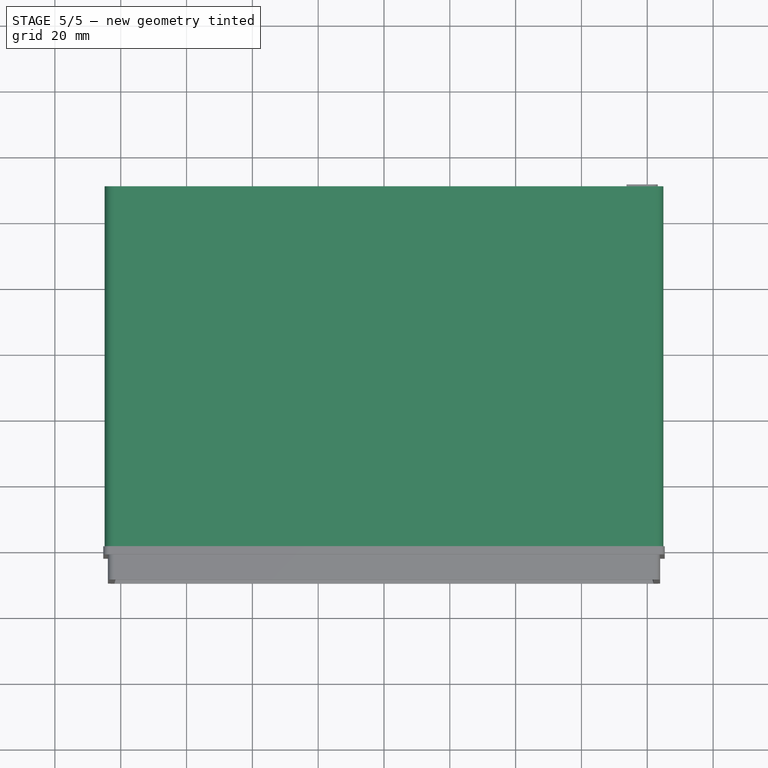
[diagram: stage 5 of 5 — top view after this stage's code; geometry added in this stage tinted green]
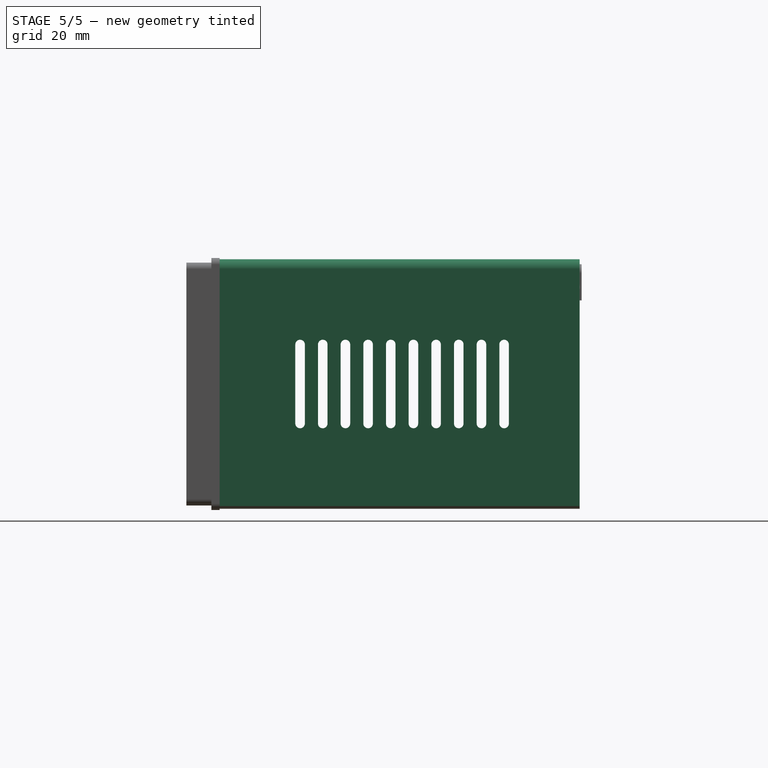
[diagram: stage 5 of 5 — right view after this stage's code; geometry added in this stage tinted green]
FEATURE [PartDesign::Body] Body  label="Body_FrameFront"
  Group = -> [Sketch,Sketch001,AdditivePipe,Sketch002,Pocket,MultiTransform,Mirrored,Mirrored001,Sketch003,Pocket001,MultiTransform001,Mirrored002,Mirrored003,Sketch004,Pocket002,Fillet,Fillet001,Sketch005,Pocket003]
  Origin = -> Origin
  Tip = -> Pocket003
FEATURE [Sketcher::SketchObject] Sketch006  label="Sketch_CoverProfile"
  MapMode = 5
  Placement = pos=(0,0,0) rot=(1,0,0;1.5708rad)
  Support = -> [XZ_Plane001]
  sketch-geometry (12):
    g0: LineSegment StartX=-84.9 StartY=-37.1 StartZ=0 EndX=-84.9 EndY=34.9 EndZ=0
    g1: ArcOfCircle CenterX=-81.9 CenterY=34.9 CenterZ=0 NormalX=0 NormalY=0 NormalZ=1 AngleXU=0 Radius=3 StartAngle=1.5708 EndAngle=3.14159
    g2: LineSegment StartX=-81.9 StartY=37.9 StartZ=0 EndX=81.9 EndY=37.9 EndZ=0
    g3: ArcOfCircle CenterX=81.9 CenterY=34.9 CenterZ=0 NormalX=0 NormalY=0 NormalZ=1 AngleXU=0 Radius=3 StartAngle=0 EndAngle=1.5708
    g4: LineSegment StartX=84.9 StartY=34.9 StartZ=0 EndX=84.9 EndY=-37.1 EndZ=0
    g5: LineSegment StartX=84.9 StartY=-37.1 StartZ=0 EndX=83.9 EndY=-37.1 EndZ=0
    g6: LineSegment StartX=83.9 StartY=-37.1 StartZ=0 EndX=83.9 EndY=34.9 EndZ=0
    g7: ArcOfCircle CenterX=81.9 CenterY=34.9 CenterZ=0 NormalX=0 NormalY=0 NormalZ=1 AngleXU=0 Radius=2 StartAngle=4e-16 EndAngle=1.5708
    g8: LineSegment StartX=81.9 StartY=36.9 StartZ=0 EndX=-81.9 EndY=36.9 EndZ=0
    g9: ArcOfCircle CenterX=-81.9 CenterY=34.9 CenterZ=0 NormalX=0 NormalY=0 NormalZ=1 AngleXU=0 Radius=2 StartAngle=1.5708 EndAngle=3.14159
    g10: LineSegment StartX=-83.9 StartY=34.9 StartZ=0 EndX=-83.9 EndY=-37.1 EndZ=0
    g11: LineSegment StartX=-83.9 StartY=-37.1 StartZ=0 EndX=-84.9 EndY=-37.1 EndZ=0
  constraints (29):
    c: Vertical(g0)
    c: Tangent(g0,g1) = 1.5708
    c: Tangent(g1,g2) = 1.5708
    c: Tangent(g2,g3) = 1.5708
    c: Tangent(g3,g4) = 1.5708
    c: Coincident(g4,g5)
    c: Coincident(g5,g6)
    c: Tangent(g6,g7) = -1.5708
    c: Tangent(g7,g8) = -1.5708
    c: Tangent(g8,g9) = -1.5708
    c: Tangent(g9,g10) = -1.5708
    c: Coincident(g10,g11)
    c: Coincident(g11,g0)
    c: Horizontal(g2)
    c: Horizontal(g11)
    c: Horizontal(g5)
    c: Vertical(g4)
    c: Vertical(g6)
    c: Horizontal(g8)
    c: Coincident(g7,g3)
    c: Coincident(g9,g1)
    c: DistanceX(g11,g11) = 1
    c: Equal(g11,g5)
    c: Equal(g1,g3)
    c: Radius(g9) = 2
    c: Symmetric(g10,g5,g-2)
    c: DistanceY(g4,g2) = 75
    c: DistanceX(g10,g5) = 167.8
    c: DistanceY(g-1,g7) = 36.9
FEATURE [PartDesign::Pad] Pad  label="Pad_CoverDepth"
  Length = 110
  Length2 = 100
  Placement = pos=(0,0,0) rot=(1,0,0;1.5708rad)
  Profile = -> Sketch006
  Reversed = true
  Type = 0
FEATURE [Sketcher::SketchObject] Sketch007  label="Sketch_VentSlot"
  MapMode = 5
  Placement = pos=(-84.9,0,0) rot=(0.707107,0,-0.707107;3.14159rad)
  Support = -> [Pad]
  sketch-geometry (4):
    g0: ArcOfCircle CenterX=-12 CenterY=-25.05 CenterZ=0 NormalX=0 NormalY=0 NormalZ=1 AngleXU=0 Radius=1.45 StartAngle=1.5708 EndAngle=4.71239
    g1: ArcOfCircle CenterX=12 CenterY=-25.05 CenterZ=0 NormalX=0 NormalY=0 NormalZ=1 AngleXU=0 Radius=1.45 StartAngle=4.71239 EndAngle=7.85398
    g2: LineSegment StartX=-12 StartY=-26.5 StartZ=0 EndX=12 EndY=-26.5 EndZ=0
    g3: LineSegment StartX=-12 StartY=-23.6 StartZ=0 EndX=12 EndY=-23.6 EndZ=0
  constraints (9):
    c: Tangent(g0,g3) = 1.5708
    c: Tangent(g0,g2) = -1.5708
    c: Tangent(g2,g1) = -1.5708
    c: Tangent(g3,g1) = 1.5708
    c: Horizontal(g2)
    c: DistanceY(g1,g1) = 2.9
    c: DistanceX(g0,g1) = 24
    c: Symmetric(g0,g1,g-2)
    c: DistanceY(g0,g-1) = 23.6
FEATURE [PartDesign::Pocket] Pocket004  label="Pocket_VentSlot"
  BaseFeature = -> Pad
  Length = 5
  Length2 = 100
  Midplane = true
  Placement = pos=(0,0,0) rot=(1,0,0;1.5708rad)
  Profile = -> Sketch007
  Type = 1
FEATURE [PartDesign::LinearPattern] LinearPattern  label="LinearPattern_VentSlots"
  BaseFeature = -> Pocket004
  Direction = -> Y_Axis001
  Length = 62
  Occurrences = 10
  Originals = -> [Pocket004]
  Placement = pos=(0,0,0) rot=(1,0,0;1.5708rad)
FEATURE [PartDesign::Mirrored] Mirrored004  label="Mirrored_HolesSide"
  BaseFeature = -> Hole
  MirrorPlane = -> YZ_Plane002
  Originals = -> [Hole]
  Placement = pos=(0,0,0) rot=(1,0,0;1.5708rad)
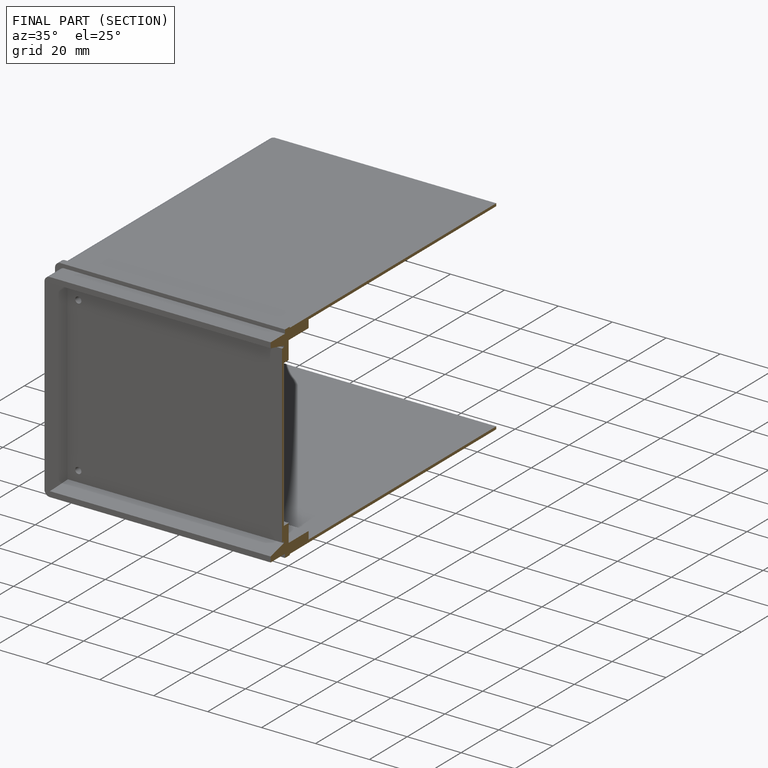
[diagram: finished part — half-section view (interior)]
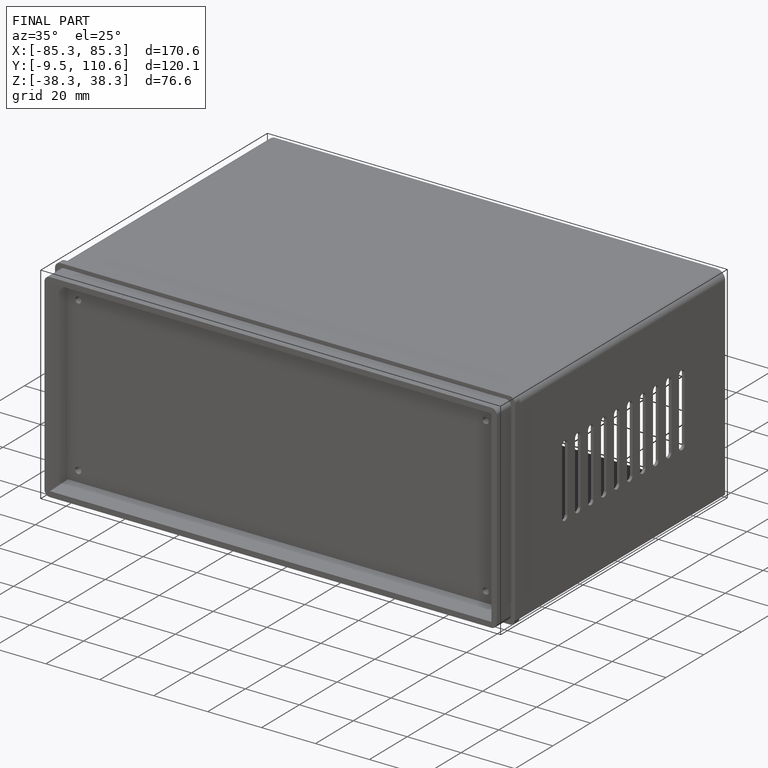
[diagram: finished part — iso view with bounding-box wireframe]
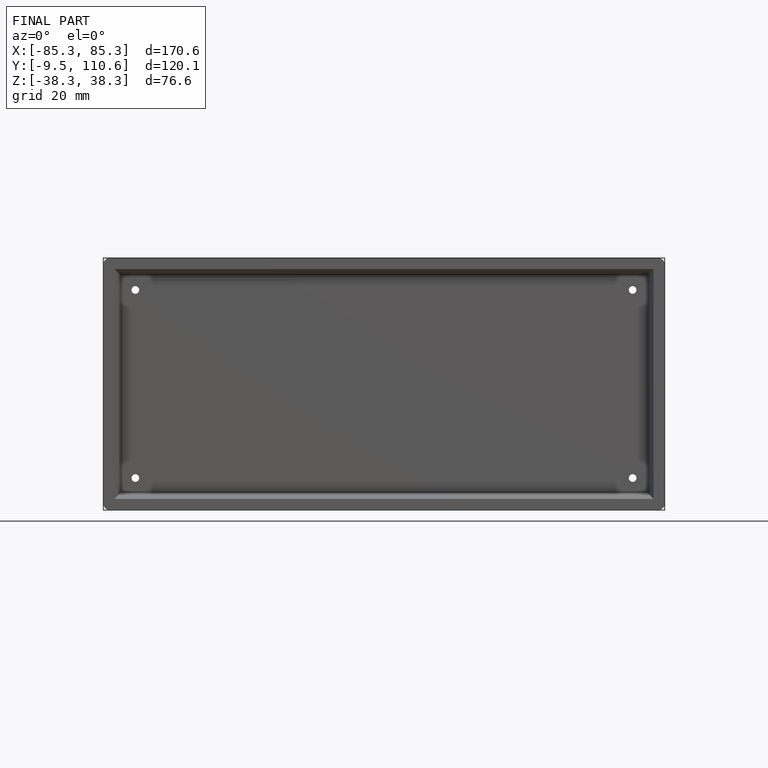
[diagram: finished part — front view with bounding-box wireframe]
